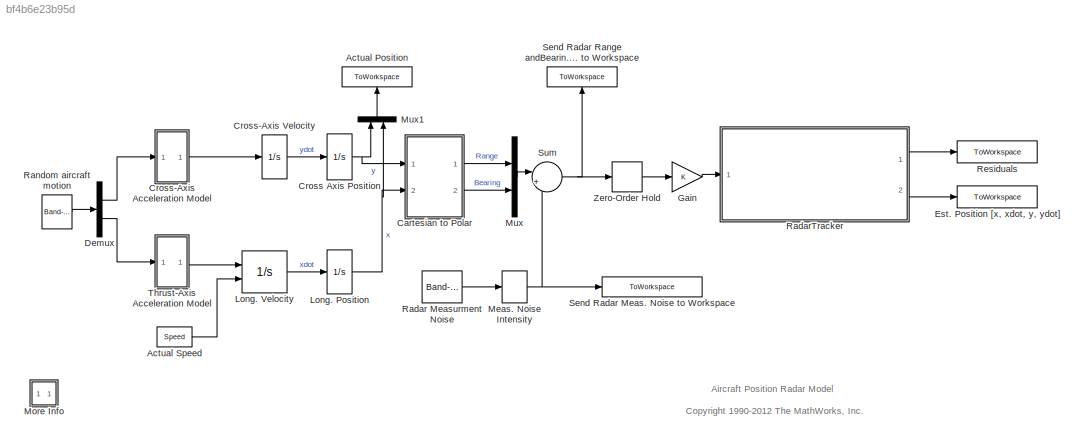
MODEL slx_bf4b6e23b95d
KIND model
CONFIG AbsTol = 1e-6
CONFIG FixedStep = 0.1
CONFIG MaxStep = 0.1
CONFIG MinStep = auto
CONFIG PostLoadFcn = rtwdemo_eml_aero_radar_data
CONFIG RelTol = 1e-3
CONFIG SampleTimeConstraint = Unconstrained
CONFIG Solver = ode5
CONFIG SolverMode = SingleTasking
CONFIG SolverName = ode5
CONFIG StartTime = 0.0
CONFIG StopFcn = rtwdemo_aero_radplot;
CONFIG StopTime = 100
BLOCK [ToWorkspace] Actual Position
  MaxDataPoints = inf
  Ports = [1]
  VariableName = XYCoords
BLOCK [Constant] Actual Speed
  OutDataTypeStr = double
  Value = Speed
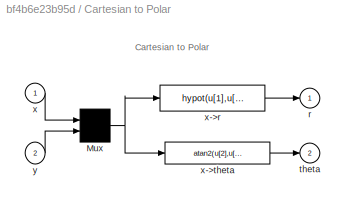
BLOCK [SubSystem] Cartesian to Polar
  PermitHierarchicalResolution = ExplicitOnly
  Ports = [2, 2]
  RequestExecContextInheritance = off
  ShowPortLabels = none
BLOCK [Mux] Cartesian to Polar/Mux
  Inputs = 2
  Ports = [2, 1]
BLOCK [Outport] Cartesian to Polar/r
  IconDisplay = Port number
  InitialOutput = 0
BLOCK [Outport] Cartesian to Polar/theta
  IconDisplay = Port number
  InitialOutput = 0
  Port = 2
BLOCK [Inport] Cartesian to Polar/x
  IconDisplay = Port number
BLOCK [Fcn] Cartesian to Polar/x->r
  Expr = hypot(u[1],u[2])
BLOCK [Fcn] Cartesian to Polar/x->theta
  Expr = atan2(u[2],u[1])
BLOCK [Inport] Cartesian to Polar/y
  IconDisplay = Port number
  Port = 2
BLOCK [Integrator] Cross Axis Position 
  Ports = [1, 1]
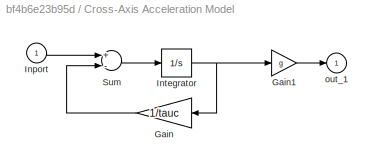
BLOCK [SubSystem] Cross-Axis Acceleration Model
  PermitHierarchicalResolution = ExplicitOnly
  Ports = [1, 1]
  RequestExecContextInheritance = off
  ShowPortLabels = none
BLOCK [Gain] Cross-Axis Acceleration Model/Gain
  Gain = 1/tauc
BLOCK [Gain] Cross-Axis Acceleration Model/Gain1
  Gain = g
BLOCK [Inport] Cross-Axis Acceleration Model/Inport
  IconDisplay = Port number
BLOCK [Integrator] Cross-Axis Acceleration Model/Integrator
  Ports = [1, 1]
BLOCK [Sum] Cross-Axis Acceleration Model/Sum
  Inputs = +-
  Ports = [2, 1]
BLOCK [Outport] Cross-Axis Acceleration Model/out_1
  IconDisplay = Port number
  InitialOutput = 0
BLOCK [Integrator] Cross-Axis Velocity
  Ports = [1, 1]
BLOCK [Demux] Demux
  Outputs = 2
  Ports = [1, 2]
BLOCK [ToWorkspace] Est. Position [x, xdot, y, ydot]
  MaxDataPoints = inf
  Ports = [1]
  SampleTime = -1
  VariableName = X_hat
BLOCK [Gain] Gain
  OutDataTypeStr = single
  ParamDataTypeStr = Inherit: Inherit via internal rule
  SaturateOnIntegerOverflow = off
BLOCK [Integrator] Long. Position
  Ports = [1, 1]
BLOCK [Integrator] Long. Velocity
  InitialConditionSource = external
  Ports = [2, 1]
BLOCK [StateSpace] Meas. Noise Intensity
  A = []
  B = []
  C = []
  D = K
  Ports = [1, 1]
  X0 = 0
BLOCK [SubSystem] More Info
  OpenFcn = showdemo('rtwdemo_radar_script')
  Ports = []
  RequestExecContextInheritance = off
BLOCK [Mux] Mux
  DisplayOption = bar
  Inputs = 2
  Ports = [2, 1]
BLOCK [Mux] Mux1
  DisplayOption = bar
  Inputs = 2
  Ports = [2, 1]
BLOCK [Reference] Radar Measurment Noise  REF=simulink/Sources/Band-Limited
White Noise
  Cov = [1 1]
  Ports = [0, 1]
  SourceBlock = simulink/Sources/Band-Limited\nWhite Noise
  SourceType = Band-Limited White Noise.
  Ts = 0.1
  VectorParams1D = on
  seed = [52341 62341]
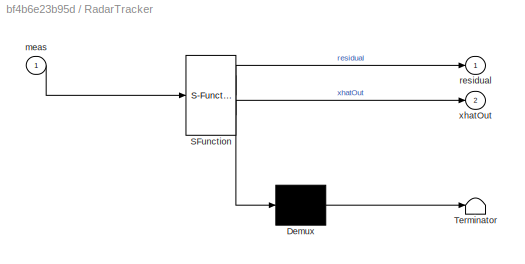
BLOCK [SubSystem] RadarTracker
  ErrorFcn = Stateflow.Translate.translate
  PermitHierarchicalResolution = ExplicitOnly
  Ports = [1, 2]
  RequestExecContextInheritance = off
  SFBlockType = MATLAB Function
  TreatAsAtomicUnit = on
BLOCK [Demux] RadarTracker/ Demux 
  Outputs = 1
  Ports = [1, 1]
BLOCK [S-Function] RadarTracker/ SFunction 
  EnableBusSupport = on
  FunctionName = sf_sfun
  Parameters = deltat
  PortCounts = [1 3]
  Ports = [1, 3]
  Tag = Stateflow S-Function demo_aero_radar 2
BLOCK [Terminator] RadarTracker/ Terminator 
BLOCK [Inport] RadarTracker/meas
  IconDisplay = Port number
BLOCK [Outport] RadarTracker/residual
  IconDisplay = Port number
BLOCK [Outport] RadarTracker/xhatOut
  IconDisplay = Port number
  Port = 2
BLOCK [Reference] Random aircraft motion  REF=simulink/Sources/Band-Limited
White Noise
  Cov = [0.001 .001]
  Ports = [0, 1]
  SourceBlock = simulink/Sources/Band-Limited\nWhite Noise
  SourceType = Band-Limited White Noise.
  Ts = 0.1
  VectorParams1D = on
  seed = [58413 74925]
BLOCK [ToWorkspace] Residuals
  MaxDataPoints = inf
  Ports = [1]
  SampleTime = -1
  VariableName = residual
BLOCK [ToWorkspace] Send Radar Meas. Noise to Workspace
  MaxDataPoints = inf
  Ports = [1]
  VariableName = Measurement_noise
BLOCK [ToWorkspace] Send Radar Range andBearing Angle Meas. to Workspace
  MaxDataPoints = inf
  Ports = [1]
  SampleTime = -1
  VariableName = PolarCoords
BLOCK [Sum] Sum
  IconShape = round
  Inputs = |++
  Ports = [2, 1]
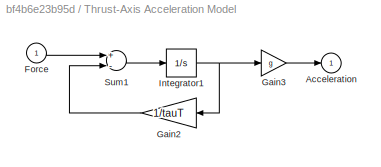
BLOCK [SubSystem] Thrust-Axis Acceleration Model
  PermitHierarchicalResolution = ExplicitOnly
  Ports = [1, 1]
  RequestExecContextInheritance = off
  ShowPortLabels = none
BLOCK [Outport] Thrust-Axis Acceleration Model/Acceleration
  IconDisplay = Port number
  InitialOutput = 0
BLOCK [Inport] Thrust-Axis Acceleration Model/Force
  IconDisplay = Port number
BLOCK [Gain] Thrust-Axis Acceleration Model/Gain2
  Gain = 1/tauT
BLOCK [Gain] Thrust-Axis Acceleration Model/Gain3
  Gain = g
BLOCK [Integrator] Thrust-Axis Acceleration Model/Integrator1
  Ports = [1, 1]
BLOCK [Sum] Thrust-Axis Acceleration Model/Sum1
  Inputs = +-
  Ports = [2, 1]
BLOCK [ZeroOrderHold] Zero-Order Hold
  SampleTime = deltat
ANNOTATION (root): Aircraft Position Radar Model
ANNOTATION (root): <copyright redacted>
ANNOTATION Cartesian to Polar: Cartesian to Polar
LINE Actual Speed:1 -> Long. Velocity:2
NET Cartesian to Polar/Mux:1 -> Cartesian to Polar/x->r:1, Cartesian to Polar/x->theta:1
LINE Cartesian to Polar/x->r:1 -> Cartesian to Polar/r:1
LINE Cartesian to Polar/x->theta:1 -> Cartesian to Polar/theta:1
LINE Cartesian to Polar/x:1 -> Cartesian to Polar/Mux:1
LINE Cartesian to Polar/y:1 -> Cartesian to Polar/Mux:2
LINE Cartesian to Polar:1 -> Mux:1
LINE Cartesian to Polar:2 -> Mux:2
NET Cross Axis Position :1 -> Cartesian to Polar:1, Mux1:1
LINE Cross-Axis Acceleration Model/Gain1:1 -> Cross-Axis Acceleration Model/out_1:1
LINE Cross-Axis Acceleration Model/Gain:1 -> Cross-Axis Acceleration Model/Sum:2
LINE Cross-Axis Acceleration Model/Inport:1 -> Cross-Axis Acceleration Model/Sum:1
NET Cross-Axis Acceleration Model/Integrator:1 -> Cross-Axis Acceleration Model/Gain1:1, Cross-Axis Acceleration Model/Gain:1
LINE Cross-Axis Acceleration Model/Sum:1 -> Cross-Axis Acceleration Model/Integrator:1
LINE Cross-Axis Acceleration Model:1 -> Cross-Axis Velocity:1
LINE Cross-Axis Velocity:1 -> Cross Axis Position :1
LINE Demux:1 -> Cross-Axis Acceleration Model:1
LINE Demux:2 -> Thrust-Axis Acceleration Model:1
LINE Gain:1 -> RadarTracker:1
NET Long. Position:1 -> Cartesian to Polar:2, Mux1:2
LINE Long. Velocity:1 -> Long. Position:1
NET Meas. Noise Intensity:1 -> Send Radar Meas. Noise to Workspace:1, Sum:2
LINE Mux1:1 -> Actual Position:1
LINE Mux:1 -> Sum:1
LINE Radar Measurment Noise:1 -> Meas. Noise Intensity:1
LINE RadarTracker:1 -> Residuals:1
LINE RadarTracker:2 -> Est. Position [x, xdot, y, ydot]:1
LINE Random aircraft motion:1 -> Demux:1
NET Sum:1 -> Send Radar Range andBearing Angle Meas. to Workspace:1, Zero-Order Hold:1
LINE Thrust-Axis Acceleration Model/Force:1 -> Thrust-Axis Acceleration Model/Sum1:1
LINE Thrust-Axis Acceleration Model/Gain2:1 -> Thrust-Axis Acceleration Model/Sum1:2
LINE Thrust-Axis Acceleration Model/Gain3:1 -> Thrust-Axis Acceleration Model/Acceleration:1
NET Thrust-Axis Acceleration Model/Integrator1:1 -> Thrust-Axis Acceleration Model/Gain2:1, Thrust-Axis Acceleration Model/Gain3:1
LINE Thrust-Axis Acceleration Model/Sum1:1 -> Thrust-Axis Acceleration Model/Integrator1:1
LINE Thrust-Axis Acceleration Model:1 -> Long. Velocity:1
LINE Zero-Order Hold:1 -> Gain:1
note: NET lines group one-source signal fan-out (src -> all destinations, sorted); 1:1 wires keep LINE
CHART RadarTracker states=1 transitions=1
  STATE_LABEL 'eML_blk_kernel()'
  STATE_LABEL 'SCRIPT:\nfunction [residual, xhatOut] = AERO_EXTKALMAN(meas, deltat)\n% AERO_EXTKALMAN Radar Data Processing Tracker Using an Extended Kalman\n% Filter.  Radar update time deltat is inherited from workspace.\n\n% Initialization\npersistent P\npersistent xhat\nif isempty(P)\n    xhat = single([0.001; 0.01; 0.001; 400]);\n    P = single(zeros(4));\nend\n\n% 1. Compute Phi, Q, and R \nPhi = [1 deltat 0 0; 0 1 0 0 ...<+822ch>'
